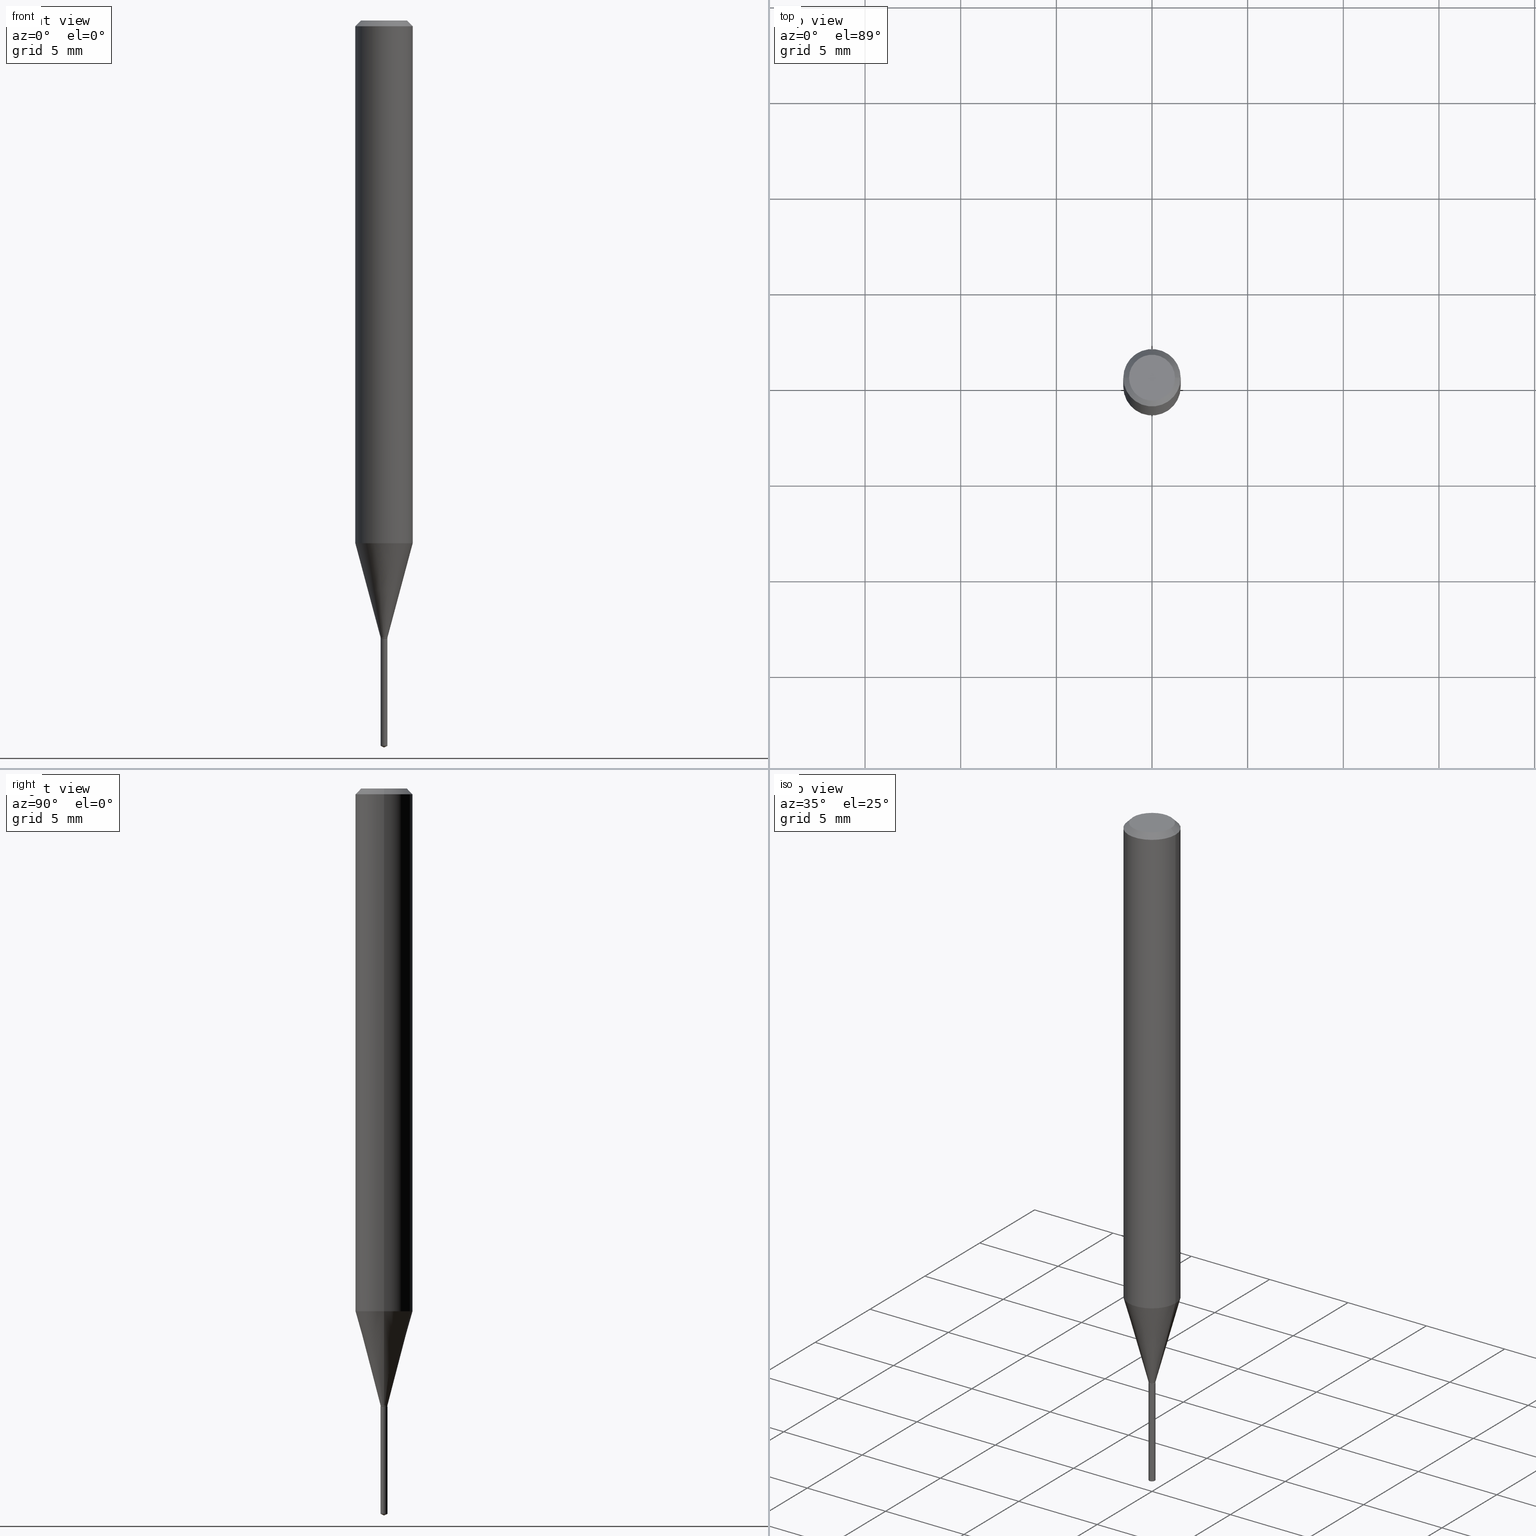
[diagram: canonical four-view strip — front | top / right | iso, engineering-drawing reading convention]
A machine part, canonical four-view strip (front | top / right | iso — engineering-drawing reading convention). The complete STEP part file that produces these views, byte-faithful:
ISO-10303-21;
HEADER;
FILE_DESCRIPTION (( 'STEP AP203' ),
    '1' );
FILE_NAME ('08077.STEP',
    '2024-04-24T10:45:27',
    ( '' ),
    ( '' ),
    'SwSTEP 2.0',
    'SolidWorks 2023',
    '' );
FILE_SCHEMA (( 'CONFIG_CONTROL_DESIGN' ));
ENDSEC;

DATA;
#1 = DIRECTION ( 'NONE',  ( -2.445468806185136597E-29, 3.491481338843145583E-15, 1.000000000000000000 ) ) ;
#2 = EDGE_LOOP ( 'NONE', ( #309, #113, #274, #414 ) ) ;
#3 = CIRCLE ( 'NONE', #214, 0.007100000000000000408 ) ;
#4 = AXIS2_PLACEMENT_3D ( 'NONE', #121, #100, #264 ) ;
#5 = CC_DESIGN_APPROVAL ( #158, ( #436 ) ) ;
#6 = ORIENTED_EDGE ( 'NONE', *, *, #26, .T. ) ;
#7 = FACE_OUTER_BOUND ( 'NONE', #281, .T. ) ;
#8 = LINE ( 'NONE', #250, #296 ) ;
#9 = ORIENTED_EDGE ( 'NONE', *, *, #339, .F. ) ;
#10 = PERSON_AND_ORGANIZATION ( #488, #123 ) ;
#11 = APPROVAL_PERSON_ORGANIZATION ( #389, #158, #366 ) ;
#12 = DIRECTION ( 'NONE',  ( -2.445451076271118923E-29, 3.491506729089142946E-15, 1.000000000000000000 ) ) ;
#13 = DIRECTION ( 'NONE',  ( -2.445468806185136597E-29, 3.491481338843145583E-15, 1.000000000000000000 ) ) ;
#14 = DIRECTION ( 'NONE',  ( 1.000000000000000000, -6.982962677686266711E-15, 4.876185090822587894E-29 ) ) ;
#15 = PERSON_AND_ORGANIZATION ( #488, #123 ) ;
#16 = PERSON_AND_ORGANIZATION_ROLE ( 'creator' ) ;
#17 = ORIENTED_EDGE ( 'NONE', *, *, #56, .T. ) ;
#18 = DIRECTION ( 'NONE',  ( -6.982962677686265922E-15, -1.000000000000000000, 0.000000000000000000 ) ) ;
#19 = CARTESIAN_POINT ( 'NONE',  ( -0.05905000000000013710, -3.336280682603885216E-15, -1.075719960546796861 ) ) ;
#20 = PRODUCT_DEFINITION ( 'UNKNOWN', '', #436, #122 ) ;
#21 = UNCERTAINTY_MEASURE_WITH_UNIT (LENGTH_MEASURE( 1.000000000000000082E-05 ), #277, 'distance_accuracy_value', 'NONE');
#22 = VECTOR ( 'NONE', #323, 39.37007874015748143 ) ;
#23 = LINE ( 'NONE', #182, #351 ) ;
#24 = LINE ( 'NONE', #112, #485 ) ;
#25 = ORIENTED_EDGE ( 'NONE', *, *, #263, .F. ) ;
#26 = EDGE_CURVE ( 'NONE', #33, #380, #404, .T. ) ;
#27 = CARTESIAN_POINT ( 'NONE',  ( 0.007100000000000000408, -4.482363742806830057E-15, -1.269600000000000062 ) ) ;
#28 = CYLINDRICAL_SURFACE ( 'NONE', #135, 0.007100000000000000408 ) ;
#29 = CONICAL_SURFACE ( 'NONE', #415, 0.05904999999999999832, 0.7853981633974452814 ) ;
#30 = EDGE_CURVE ( 'NONE', #83, #439, #23, .T. ) ;
#31 = CARTESIAN_POINT ( 'NONE',  ( 3.658684844895993065E-29, -5.223578639838595725E-15, -1.496099999999999985 ) ) ;
#32 = VERTEX_POINT ( 'NONE', #186 ) ;
#33 = VERTEX_POINT ( 'NONE', #301 ) ;
#34 = AXIS2_PLACEMENT_3D ( 'NONE', #137, #86, #298 ) ;
#35 = ORIENTED_EDGE ( 'NONE', *, *, #374, .F. ) ;
#36 = CIRCLE ( 'NONE', #85, 0.007100000000000000408 ) ;
#37 = VERTEX_POINT ( 'NONE', #192 ) ;
#38 = CARTESIAN_POINT ( 'NONE',  ( -0.007100000000000000408, -4.385129358627364316E-15, -1.269600000000000062 ) ) ;
#39 = APPROVAL_STATUS ( 'not_yet_approved' ) ;
#40 = ORIENTED_EDGE ( 'NONE', *, *, #428, .F. ) ;
#41 = CALENDAR_DATE ( 2024, 24, 4 ) ;
#42 = FACE_OUTER_BOUND ( 'NONE', #384, .T. ) ;
#43 = CARTESIAN_POINT ( 'NONE',  ( -9.261893952565592859E-28, 1.322372839174148049E-13, 37.87397874015748300 ) ) ;
#44 = CARTESIAN_POINT ( 'NONE',  ( 0.05905000000000006771, -4.123439461173745257E-16, 2.879382386107503723E-30 ) ) ;
#45 = ORIENTED_EDGE ( 'NONE', *, *, #381, .T. ) ;
#46 = DIRECTION ( 'NONE',  ( -2.445468806185136597E-29, 3.491481338843145583E-15, 1.000000000000000000 ) ) ;
#47 = AXIS2_PLACEMENT_3D ( 'NONE', #468, #180, #337 ) ;
#48 = AXIS2_PLACEMENT_3D ( 'NONE', #66, #1, #236 ) ;
#49 = PERSON_AND_ORGANIZATION ( #488, #123 ) ;
#50 = CARTESIAN_POINT ( 'NONE',  ( 8.265746106709734507E-48, -1.180129479067563789E-33, -3.380025165646692144E-19 ) ) ;
#51 = DATE_AND_TIME ( #41, #302 ) ;
#52 = MANIFOLD_SOLID_BREP ( 'Body-Move/Copy2[1]', #170 ) ;
#53 = CC_DESIGN_PERSON_AND_ORGANIZATION_ASSIGNMENT ( #10, #89, ( #422 ) ) ;
#54 = FACE_OUTER_BOUND ( 'NONE', #202, .T. ) ;
#55 = ORIENTED_EDGE ( 'NONE', *, *, #435, .T. ) ;
#56 = EDGE_CURVE ( 'NONE', #33, #459, #101, .T. ) ;
#57 = FACE_OUTER_BOUND ( 'NONE', #395, .T. ) ;
#58 = CIRCLE ( 'NONE', #268, 0.04724000000000000421 ) ;
#59 = CC_DESIGN_PERSON_AND_ORGANIZATION_ASSIGNMENT ( #61, #474, ( #417 ) ) ;
#60 = LINE ( 'NONE', #269, #114 ) ;
#61 = PERSON_AND_ORGANIZATION ( #488, #123 ) ;
#62 = DIRECTION ( 'NONE',  ( -2.445451076271118923E-29, 3.491506729089142946E-15, 1.000000000000000000 ) ) ;
#63 = LINE ( 'NONE', #181, #239 ) ;
#64 = EDGE_LOOP ( 'NONE', ( #120, #308, #105, #292 ) ) ;
#65 = DIRECTION ( 'NONE',  ( -2.445468806185136597E-29, 3.491481338843145583E-15, 1.000000000000000000 ) ) ;
#66 = CARTESIAN_POINT ( 'NONE',  ( 3.109902680825638129E-29, -4.440116818606828093E-15, -1.271700000000000053 ) ) ;
#67 = CARTESIAN_POINT ( 'NONE',  ( 3.104767196332649259E-29, -4.432784707795257778E-15, -1.269600000000000062 ) ) ;
#68 = DIRECTION ( 'NONE',  ( -2.445468806185136877E-29, 3.491481338843145188E-15, 1.000000000000000000 ) ) ;
#69 = DIRECTION ( 'NONE',  ( 1.000000000000000000, -6.982962677686291954E-15, 0.000000000000000000 ) ) ;
#70 = ORIENTED_EDGE ( 'NONE', *, *, #273, .F. ) ;
#71 = CC_DESIGN_PERSON_AND_ORGANIZATION_ASSIGNMENT ( #15, #16, ( #436 ) ) ;
#72 = CONICAL_SURFACE ( 'NONE', #364, 84.42940631927135087, 1.134464013796302462 ) ;
#73 = FACE_OUTER_BOUND ( 'NONE', #375, .T. ) ;
#74 = DIRECTION ( 'NONE',  ( -2.445451076271118923E-29, 3.491506729089142946E-15, 1.000000000000000000 ) ) ;
#75 = ORIENTED_EDGE ( 'NONE', *, *, #451, .T. ) ;
#76 = ORIENTED_EDGE ( 'NONE', *, *, #118, .F. ) ;
#77 = EDGE_CURVE ( 'NONE', #348, #37, #333, .T. ) ;
#78 = AXIS2_PLACEMENT_3D ( 'NONE', #340, #265, #335 ) ;
#79 = APPLICATION_PROTOCOL_DEFINITION ( 'international standard', 'config_control_design', 1994, #197 ) ;
#80 = CIRCLE ( 'NONE', #376, 0.006599999999999999964 ) ;
#81 = PRODUCT_DEFINITION_SHAPE ( 'NONE', 'NONE',  #20 ) ;
#82 = EDGE_CURVE ( 'NONE', #460, #284, #266, .T. ) ;
#83 = VERTEX_POINT ( 'NONE', #229 ) ;
#84 = VECTOR ( 'NONE', #480, 39.37007874015748143 ) ;
#85 = AXIS2_PLACEMENT_3D ( 'NONE', #184, #211, #324 ) ;
#86 = DIRECTION ( 'NONE',  ( 2.445451076271118923E-29, -3.491506729089142552E-15, -1.000000000000000000 ) ) ;
#87 = ORIENTED_EDGE ( 'NONE', *, *, #30, .T. ) ;
#88 = DIRECTION ( 'NONE',  ( -2.445468806185136597E-29, 3.491481338843145583E-15, 1.000000000000000000 ) ) ;
#89 = PERSON_AND_ORGANIZATION_ROLE ( 'design_owner' ) ;
#90 = ORIENTED_EDGE ( 'NONE', *, *, #322, .F. ) ;
#91 = MECHANICAL_CONTEXT ( 'NONE', #197, 'mechanical' ) ;
#92 = CARTESIAN_POINT ( 'NONE',  ( 2.888098660104663766E-31, -4.123439461173779647E-17, -0.01181000000000007044 ) ) ;
#93 = CALENDAR_DATE ( 2024, 24, 4 ) ;
#94 = CIRCLE ( 'NONE', #189, 0.05904999999999999832 ) ;
#95 = LOCAL_TIME ( 6, 45, 27.00000000000000000, #471 ) ;
#96 = CARTESIAN_POINT ( 'NONE',  ( 0.05904999999999999832, -4.463468013801466955E-16, -0.01181000000000007044 ) ) ;
#97 = EDGE_CURVE ( 'NONE', #103, #33, #299, .T. ) ;
#98 = DIRECTION ( 'NONE',  ( 0.7071067811865453523, -7.319954787623248157E-15, -0.7071067811865496822 ) ) ;
#99 = PERSON_AND_ORGANIZATION_ROLE ( 'design_supplier' ) ;
#100 = DIRECTION ( 'NONE',  ( -2.438088387897960049E-29, 3.491481338843145188E-15, 1.000000000000000000 ) ) ;
#101 = LINE ( 'NONE', #27, #358 ) ;
#102 = LENGTH_MEASURE_WITH_UNIT ( LENGTH_MEASURE( 0.02539999999999999897 ), #346 );
#103 = VERTEX_POINT ( 'NONE', #345 ) ;
#104 = FACE_OUTER_BOUND ( 'NONE', #476, .T. ) ;
#105 = ORIENTED_EDGE ( 'NONE', *, *, #200, .T. ) ;
#106 =( NAMED_UNIT ( * ) PLANE_ANGLE_UNIT ( ) SI_UNIT ( $, .RADIAN. ) );
#107 = CARTESIAN_POINT ( 'NONE',  ( 3.104767196332649259E-29, -4.432784707795257778E-15, -1.269600000000000062 ) ) ;
#108 = ORIENTED_EDGE ( 'NONE', *, *, #200, .F. ) ;
#109 = LINE ( 'NONE', #407, #425 ) ;
#110 = APPLICATION_CONTEXT ( 'configuration controlled 3d designs of mechanical parts and assemblies' ) ;
#111 = CARTESIAN_POINT ( 'NONE',  ( 0.000000000000000000, 0.000000000000000000, 0.000000000000000000 ) ) ;
#112 = CARTESIAN_POINT ( 'NONE',  ( -0.05905000000000006771, 4.195754854663396409E-16, -2.904631170795525045E-30 ) ) ;
#113 = ORIENTED_EDGE ( 'NONE', *, *, #162, .T. ) ;
#114 = VECTOR ( 'NONE', #372, 39.37007874015747433 ) ;
#115 = ORIENTED_EDGE ( 'NONE', *, *, #145, .F. ) ;
#116 = DIRECTION ( 'NONE',  ( -1.000000000000000000, 6.982962677686266711E-15, 0.000000000000000000 ) ) ;
#117 = CARTESIAN_POINT ( 'NONE',  ( 0.05905000000000013710, -4.168200114187600418E-15, -1.075719960546796861 ) ) ;
#118 = EDGE_CURVE ( 'NONE', #153, #284, #8, .T. ) ;
#119 = EDGE_LOOP ( 'NONE', ( #151, #75, #205 ) ) ;
#120 = ORIENTED_EDGE ( 'NONE', *, *, #403, .F. ) ;
#121 = CARTESIAN_POINT ( 'NONE',  ( 3.109902680825638129E-29, -4.440116818606828093E-15, -1.271700000000000053 ) ) ;
#122 = DESIGN_CONTEXT ( 'detailed design', #110, 'design' ) ;
#123 = ORGANIZATION ( 'UNSPECIFIED', 'UNSPECIFIED', '' ) ;
#124 = DIRECTION ( 'NONE',  ( 1.000000000000000000, -6.982962677686215435E-15, 0.000000000000000000 ) ) ;
#125 = VERTEX_POINT ( 'NONE', #390 ) ;
#126 = ADVANCED_FACE ( 'NONE', ( #42 ), #212, .T. ) ;
#127 = ORIENTED_EDGE ( 'NONE', *, *, #361, .T. ) ;
#128 = ORIENTED_EDGE ( 'NONE', *, *, #221, .T. ) ;
#129 = DIRECTION ( 'NONE',  ( -2.445468806185136597E-29, 3.491481338843145583E-15, 1.000000000000000000 ) ) ;
#130 = FACE_OUTER_BOUND ( 'NONE', #226, .T. ) ;
#131 = CARTESIAN_POINT ( 'NONE',  ( 0.000000000000000000, 0.000000000000000000, 0.000000000000000000 ) ) ;
#132 = CARTESIAN_POINT ( 'NONE',  ( 0.000000000000000000, 0.000000000000000000, 0.000000000000000000 ) ) ;
#133 = AXIS2_PLACEMENT_3D ( 'NONE', #466, #62, #437 ) ;
#134 = VECTOR ( 'NONE', #477, 39.37007874015748143 ) ;
#135 = AXIS2_PLACEMENT_3D ( 'NONE', #195, #148, #440 ) ;
#136 = DATE_AND_TIME ( #142, #95 ) ;
#137 = CARTESIAN_POINT ( 'NONE',  ( 3.109902680825638129E-29, -4.440116818606828093E-15, -1.271700000000000053 ) ) ;
#138 = DIRECTION ( 'NONE',  ( -0.7071067811866191821, 7.493145998870612907E-15, 0.7071067811864758523 ) ) ;
#139 = PERSON_AND_ORGANIZATION ( #488, #123 ) ;
#140 = EDGE_LOOP ( 'NONE', ( #413, #354, #199, #443 ) ) ;
#141 = APPROVAL_ROLE ( '' ) ;
#142 = CALENDAR_DATE ( 2024, 24, 4 ) ;
#143 = CONICAL_SURFACE ( 'NONE', #47, 0.05904999999999999832, 0.7853981633974452814 ) ;
#144 = CIRCLE ( 'NONE', #225, 0.04724000000000000421 ) ;
#145 = EDGE_CURVE ( 'NONE', #223, #460, #373, .T. ) ;
#146 = VERTEX_POINT ( 'NONE', #19 ) ;
#147 = DIRECTION ( 'NONE',  ( -2.445468806185136597E-29, 3.491481338843145583E-15, 1.000000000000000000 ) ) ;
#148 = DIRECTION ( 'NONE',  ( -2.445451076271118923E-29, 3.491506729089142946E-15, 1.000000000000000000 ) ) ;
#149 = DIMENSIONAL_EXPONENTS ( 1.000000000000000000, 0.000000000000000000, 0.000000000000000000, 0.000000000000000000, 0.000000000000000000, 0.000000000000000000, 0.000000000000000000 ) ;
#150 = DIRECTION ( 'NONE',  ( -2.445468806185136597E-29, 3.491481338843145583E-15, 1.000000000000000000 ) ) ;
#151 = ORIENTED_EDGE ( 'NONE', *, *, #344, .F. ) ;
#152 = EDGE_LOOP ( 'NONE', ( #127, #479 ) ) ;
#153 = VERTEX_POINT ( 'NONE', #293 ) ;
#154 = ADVANCED_FACE ( 'NONE', ( #185 ), #156, .T. ) ;
#155 = CARTESIAN_POINT ( 'NONE',  ( 2.630639607707897401E-29, -3.755856168070225498E-15, -1.075719960546796861 ) ) ;
#156 = CONICAL_SURFACE ( 'NONE', #178, 84.42940631927135087, 1.134464013796302462 ) ;
#157 = AXIS2_PLACEMENT_3D ( 'NONE', #427, #256, #419 ) ;
#158 = APPROVAL ( #39, 'UNSPECIFIED' ) ;
#159 = FACE_OUTER_BOUND ( 'NONE', #222, .T. ) ;
#160 = VERTEX_POINT ( 'NONE', #461 ) ;
#161 = DIRECTION ( 'NONE',  ( 2.438088387897960049E-29, -3.491481338843145188E-15, -1.000000000000000000 ) ) ;
#162 = EDGE_CURVE ( 'NONE', #146, #459, #444, .T. ) ;
#163 = AXIS2_PLACEMENT_3D ( 'NONE', #172, #392, #424 ) ;
#164 = AXIS2_PLACEMENT_3D ( 'NONE', #382, #161, #203 ) ;
#165 = LINE ( 'NONE', #96, #481 ) ;
#166 = ORIENTED_EDGE ( 'NONE', *, *, #322, .T. ) ;
#167 = ORIENTED_EDGE ( 'NONE', *, *, #344, .T. ) ;
#168 = ORIENTED_EDGE ( 'NONE', *, *, #313, .T. ) ;
#169 = ADVANCED_FACE ( 'NONE', ( #217 ), #330, .T. ) ;
#170 = CLOSED_SHELL ( 'NONE', ( #126, #464, #154, #278, #193 ) ) ;
#171 = LOCAL_TIME ( 6, 45, 27.00000000000000000, #487 ) ;
#172 = CARTESIAN_POINT ( 'NONE',  ( 2.630639607707897401E-29, -3.755856168070225498E-15, -1.075719960546796861 ) ) ;
#173 = CARTESIAN_POINT ( 'NONE',  ( 3.104767196332649259E-29, -4.432784707795257778E-15, -1.269600000000000062 ) ) ;
#174 = CARTESIAN_POINT ( 'NONE',  ( -0.05904999999999999832, -1.478969795874641529E-15, -0.01181000000000007044 ) ) ;
#175 = ORIENTED_EDGE ( 'NONE', *, *, #339, .T. ) ;
#176 = CYLINDRICAL_SURFACE ( 'NONE', #393, 0.007100000000000000408 ) ;
#177 = ADVANCED_FACE ( 'NONE', ( #130 ), #143, .T. ) ;
#178 = AXIS2_PLACEMENT_3D ( 'NONE', #43, #213, #369 ) ;
#179 = AXIS2_PLACEMENT_3D ( 'NONE', #247, #255, #259 ) ;
#180 = DIRECTION ( 'NONE',  ( 2.445468806185136597E-29, -3.491481338843145583E-15, -1.000000000000000000 ) ) ;
#181 = CARTESIAN_POINT ( 'NONE',  ( -0.05904999999999999832, 3.711095515056362547E-16, -0.01181000000000007044 ) ) ;
#182 = CARTESIAN_POINT ( 'NONE',  ( -0.006599999999999999964, -4.393220998046661912E-15, -1.271700000000000053 ) ) ;
#183 = APPROVAL ( #472, 'UNSPECIFIED' ) ;
#184 = CARTESIAN_POINT ( 'NONE',  ( 3.109902680825638129E-29, -4.440116818606828093E-15, -1.271700000000000053 ) ) ;
#185 = FACE_OUTER_BOUND ( 'NONE', #357, .T. ) ;
#186 = CARTESIAN_POINT ( 'NONE',  ( 0.04724000000000000421, -3.852183633974369345E-16, -3.380025165621689721E-19 ) ) ;
#187 = ORIENTED_EDGE ( 'NONE', *, *, #162, .F. ) ;
#188 = DIRECTION ( 'NONE',  ( 1.000000000000000000, -6.982962677686291954E-15, 0.000000000000000000 ) ) ;
#189 = AXIS2_PLACEMENT_3D ( 'NONE', #429, #88, #272 ) ;
#190 = AXIS2_PLACEMENT_3D ( 'NONE', #438, #434, #188 ) ;
#191 = CALENDAR_DATE ( 2024, 24, 4 ) ;
#192 = CARTESIAN_POINT ( 'NONE',  ( 0.05904999999999999832, -4.535783407291118600E-16, -0.01181000000000007044 ) ) ;
#193 = ADVANCED_FACE ( 'NONE', ( #294 ), #262, .F. ) ;
#194 = CLOSED_SHELL ( 'NONE', ( #243, #484, #240, #489, #169, #396, #289, #387, #177, #283, #307, #254 ) ) ;
#195 = CARTESIAN_POINT ( 'NONE',  ( 3.109902680825638129E-29, -4.440116818606828093E-15, -1.271700000000000053 ) ) ;
#196 = ORIENTED_EDGE ( 'NONE', *, *, #403, .T. ) ;
#197 = APPLICATION_CONTEXT ( 'configuration controlled 3d designs of mechanical parts and assemblies' ) ;
#198 = CARTESIAN_POINT ( 'NONE',  ( 5.044853423900365638E-17, 0.007099999999995559516, -1.271700000000000053 ) ) ;
#199 = ORIENTED_EDGE ( 'NONE', *, *, #26, .F. ) ;
#200 = EDGE_CURVE ( 'NONE', #37, #348, #94, .T. ) ;
#201 = ORIENTED_EDGE ( 'NONE', *, *, #145, .T. ) ;
#202 = EDGE_LOOP ( 'NONE', ( #40, #9 ) ) ;
#203 = DIRECTION ( 'NONE',  ( -1.000000000000000000, 6.982962677686265922E-15, -4.876176775795935793E-29 ) ) ;
#204 = AXIS2_PLACEMENT_3D ( 'NONE', #388, #12, #18 ) ;
#205 = ORIENTED_EDGE ( 'NONE', *, *, #328, .F. ) ;
#206 = DIRECTION ( 'NONE',  ( 1.000000000000000000, -6.982962677686266711E-15, 4.876176775795936353E-29 ) ) ;
#207 = APPROVAL_DATE_TIME ( #235, #183 ) ;
#208 = LINE ( 'NONE', #44, #22 ) ;
#209 = CARTESIAN_POINT ( 'NONE',  ( 3.650565541132865104E-29, -5.212051302697885877E-15, -1.492789215627099431 ) ) ;
#210 = DIRECTION ( 'NONE',  ( -2.445468806185136597E-29, 3.491481338843145583E-15, 1.000000000000000000 ) ) ;
#211 = DIRECTION ( 'NONE',  ( -2.445451076271118923E-29, 3.491506729089142946E-15, 1.000000000000000000 ) ) ;
#212 = CYLINDRICAL_SURFACE ( 'NONE', #133, 0.007100000000000000408 ) ;
#213 = DIRECTION ( 'NONE',  ( -2.445451076271118923E-29, 3.491506729089142946E-15, 1.000000000000000000 ) ) ;
#214 = AXIS2_PLACEMENT_3D ( 'NONE', #237, #408, #69 ) ;
#215 = DIRECTION ( 'NONE',  ( -6.982962677686265922E-15, -1.000000000000000000, 0.000000000000000000 ) ) ;
#216 = CC_DESIGN_APPROVAL ( #183, ( #20 ) ) ;
#217 = FACE_OUTER_BOUND ( 'NONE', #140, .T. ) ;
#218 = CARTESIAN_POINT ( 'NONE',  ( 3.108679946422545888E-29, -4.438371077937407378E-15, -1.271200000000000108 ) ) ;
#219 = APPROVAL_DATE_TIME ( #51, #158 ) ;
#220 = PERSON_AND_ORGANIZATION_ROLE ( 'creator' ) ;
#221 = EDGE_CURVE ( 'NONE', #459, #146, #378, .T. ) ;
#222 = EDGE_LOOP ( 'NONE', ( #128, #55, #108, #25 ) ) ;
#223 = VERTEX_POINT ( 'NONE', #312 ) ;
#224 = DATE_TIME_ROLE ( 'classification_date' ) ;
#225 = AXIS2_PLACEMENT_3D ( 'NONE', #478, #400, #303 ) ;
#226 = EDGE_LOOP ( 'NONE', ( #305, #35, #168, #320 ) ) ;
#227 = CC_DESIGN_SECURITY_CLASSIFICATION ( #417, ( #436 ) ) ;
#228 = EDGE_CURVE ( 'NONE', #439, #380, #109, .T. ) ;
#229 = CARTESIAN_POINT ( 'NONE',  ( -0.006599999999999999964, -4.390571770872550711E-15, -1.271700000000000053 ) ) ;
#230 = COORDINATED_UNIVERSAL_TIME_OFFSET ( 5, 0, .BEHIND. ) ;
#231 = ORIENTED_EDGE ( 'NONE', *, *, #221, .F. ) ;
#232 = ORIENTED_EDGE ( 'NONE', *, *, #97, .T. ) ;
#233 = VECTOR ( 'NONE', #465, 39.37007874015748143 ) ;
#234 = EDGE_CURVE ( 'NONE', #380, #33, #3, .T. ) ;
#235 = DATE_AND_TIME ( #191, #457 ) ;
#236 = DIRECTION ( 'NONE',  ( 1.000000000000000000, -6.982962677686215435E-15, 0.000000000000000000 ) ) ;
#237 = CARTESIAN_POINT ( 'NONE',  ( 3.104767196332649259E-29, -4.432784707795257778E-15, -1.269600000000000062 ) ) ;
#238 = CARTESIAN_POINT ( 'NONE',  ( -0.007100000000000000408, -4.385129358627364316E-15, -1.271200000000000108 ) ) ;
#239 = VECTOR ( 'NONE', #401, 39.37007874015748143 ) ;
#240 = ADVANCED_FACE ( 'NONE', ( #159 ), #446, .T. ) ;
#241 = DIRECTION ( 'NONE',  ( -2.445468806185136597E-29, 3.491481338843145583E-15, 1.000000000000000000 ) ) ;
#242 = DIRECTION ( 'NONE',  ( -2.445451076271118643E-29, 3.491506729089142552E-15, 1.000000000000000000 ) ) ;
#243 = ADVANCED_FACE ( 'NONE', ( #7 ), #467, .T. ) ;
#244 = AXIS2_PLACEMENT_3D ( 'NONE', #67, #241, #441 ) ;
#245 = DIRECTION ( 'NONE',  ( -2.445468806185136597E-29, 3.491481338843145583E-15, 1.000000000000000000 ) ) ;
#246 = CC_DESIGN_DATE_AND_TIME_ASSIGNMENT ( #452, #288, ( #20 ) ) ;
#247 = CARTESIAN_POINT ( 'NONE',  ( 3.109902680825638129E-29, -4.440116818606828093E-15, -1.271700000000000053 ) ) ;
#248 = CALENDAR_DATE ( 2024, 24, 4 ) ;
#249 = CARTESIAN_POINT ( 'NONE',  ( 3.658639355209220542E-29, -5.223643217390265926E-15, -1.496099999999999985 ) ) ;
#250 = CARTESIAN_POINT ( 'NONE',  ( -4.957903501154139640E-17, -0.007100000000004440433, -1.271700000000000053 ) ) ;
#251 = DIRECTION ( 'NONE',  ( 0.7071067811866191821, -2.468850131083007662E-15, 0.7071067811864758523 ) ) ;
#252 = CARTESIAN_POINT ( 'NONE',  ( 3.109902680825638129E-29, -4.440116818606828093E-15, -1.271700000000000053 ) ) ;
#253 = CONICAL_SURFACE ( 'NONE', #179, 0.006599999999999999964, 0.7853981633975496424 ) ;
#254 = ADVANCED_FACE ( 'NONE', ( #418 ), #253, .T. ) ;
#255 = DIRECTION ( 'NONE',  ( -2.445468806185136597E-29, 3.491481338843145583E-15, 1.000000000000000000 ) ) ;
#256 = DIRECTION ( 'NONE',  ( -2.445468806185136597E-29, 3.491481338843145583E-15, 1.000000000000000000 ) ) ;
#257 = ORIENTED_EDGE ( 'NONE', *, *, #416, .F. ) ;
#258 = APPLICATION_PROTOCOL_DEFINITION ( 'international standard', 'config_control_design', 1994, #110 ) ;
#259 = DIRECTION ( 'NONE',  ( 1.000000000000000000, -6.982962677686215435E-15, 0.000000000000000000 ) ) ;
#260 = FACE_OUTER_BOUND ( 'NONE', #64, .T. ) ;
#261 = CARTESIAN_POINT ( 'NONE',  ( 3.658639355209220542E-29, -5.223643217390265926E-15, -1.496099999999999985 ) ) ;
#262 = PLANE ( 'NONE',  #34 ) ;
#263 = EDGE_CURVE ( 'NONE', #459, #37, #208, .T. ) ;
#264 = DIRECTION ( 'NONE',  ( 1.000000000000000000, -6.982962677686265922E-15, 4.876176775795935793E-29 ) ) ;
#265 = DIRECTION ( 'NONE',  ( -2.445468806185136597E-29, 3.491481338843145583E-15, 1.000000000000000000 ) ) ;
#266 = CIRCLE ( 'NONE', #370, 0.007100000000000000408 ) ;
#267 = DATE_AND_TIME ( #93, #469 ) ;
#268 = AXIS2_PLACEMENT_3D ( 'NONE', #50, #245, #14 ) ;
#269 = CARTESIAN_POINT ( 'NONE',  ( -0.007100000000000000408, -4.382336173556289910E-15, -1.269600000000000062 ) ) ;
#270 = CARTESIAN_POINT ( 'NONE',  ( 3.109902680825638129E-29, -4.440116818606828093E-15, -1.271700000000000053 ) ) ;
#271 = APPROVAL_ROLE ( '' ) ;
#272 = DIRECTION ( 'NONE',  ( 1.000000000000000000, -6.982962677686266711E-15, 0.000000000000000000 ) ) ;
#273 = EDGE_CURVE ( 'NONE', #223, #153, #326, .T. ) ;
#274 = ORIENTED_EDGE ( 'NONE', *, *, #263, .T. ) ;
#275 = AXIS2_PLACEMENT_3D ( 'NONE', #107, #210, #391 ) ;
#276 = ORIENTED_EDGE ( 'NONE', *, *, #428, .T. ) ;
#277 =( CONVERSION_BASED_UNIT ( 'INCH', #102 ) LENGTH_UNIT ( ) NAMED_UNIT ( #149 ) );
#278 = ADVANCED_FACE ( 'NONE', ( #104 ), #28, .T. ) ;
#279 = EDGE_LOOP ( 'NONE', ( #442, #45, #232, #421 ) ) ;
#280 = ORIENTED_EDGE ( 'NONE', *, *, #118, .T. ) ;
#281 = EDGE_LOOP ( 'NONE', ( #276, #87, #257, #318 ) ) ;
#282 = DIRECTION ( 'NONE',  ( 1.000000000000000000, 0.000000000000000000, 0.000000000000000000 ) ) ;
#283 = ADVANCED_FACE ( 'NONE', ( #57 ), #412, .F. ) ;
#284 = VERTEX_POINT ( 'NONE', #314 ) ;
#285 = CC_DESIGN_APPROVAL ( #462, ( #417 ) ) ;
#286 = CYLINDRICAL_SURFACE ( 'NONE', #157, 0.05905000000000006771 ) ;
#287 = ORIENTED_EDGE ( 'NONE', *, *, #82, .F. ) ;
#288 = DATE_TIME_ROLE ( 'creation_date' ) ;
#289 = ADVANCED_FACE ( 'NONE', ( #449 ), #342, .T. ) ;
#290 = DIRECTION ( 'NONE',  ( 1.000000000000000000, -6.982962677686291954E-15, 0.000000000000000000 ) ) ;
#291 = COORDINATED_UNIVERSAL_TIME_OFFSET ( 5, 0, .BEHIND. ) ;
#292 = ORIENTED_EDGE ( 'NONE', *, *, #313, .F. ) ;
#293 = CARTESIAN_POINT ( 'NONE',  ( -4.957903501153596682E-17, -0.007100000000005210650, -1.492789215627099431 ) ) ;
#294 = FACE_OUTER_BOUND ( 'NONE', #152, .T. ) ;
#295 = CARTESIAN_POINT ( 'NONE',  ( 0.006599999999999999964, -4.486204372279557365E-15, -1.271700000000000053 ) ) ;
#296 = VECTOR ( 'NONE', #242, 39.37007874015748143 ) ;
#297 = AXIS2_PLACEMENT_3D ( 'NONE', #218, #129, #290 ) ;
#298 = DIRECTION ( 'NONE',  ( 6.982962677686265922E-15, 1.000000000000000000, -3.491506729089142552E-15 ) ) ;
#299 = LINE ( 'NONE', #402, #84 ) ;
#300 = EDGE_CURVE ( 'NONE', #160, #103, #423, .T. ) ;
#301 = CARTESIAN_POINT ( 'NONE',  ( 0.007100000000000000408, -4.482363742806830057E-15, -1.269600000000000062 ) ) ;
#302 = LOCAL_TIME ( 6, 45, 27.00000000000000000, #291 ) ;
#303 = DIRECTION ( 'NONE',  ( 1.000000000000000000, -6.982962677686266711E-15, 4.876185090822587894E-29 ) ) ;
#304 = DIRECTION ( 'NONE',  ( -6.982962677686265922E-15, -1.000000000000000000, 0.000000000000000000 ) ) ;
#305 = ORIENTED_EDGE ( 'NONE', *, *, #475, .F. ) ;
#306 = DIRECTION ( 'NONE',  ( 1.000000000000000000, -6.982962677686215435E-15, 0.000000000000000000 ) ) ;
#307 = ADVANCED_FACE ( 'NONE', ( #54 ), #331, .F. ) ;
#308 = ORIENTED_EDGE ( 'NONE', *, *, #475, .T. ) ;
#309 = ORIENTED_EDGE ( 'NONE', *, *, #435, .F. ) ;
#310 = DIRECTION ( 'NONE',  ( 1.000000000000000000, -6.982962677686265133E-15, 0.000000000000000000 ) ) ;
#311 = CIRCLE ( 'NONE', #297, 0.007100000000000000408 ) ;
#312 = CARTESIAN_POINT ( 'NONE',  ( 5.044853423900360708E-17, 0.007099999999994785829, -1.492789215627099431 ) ) ;
#313 = EDGE_CURVE ( 'NONE', #125, #348, #63, .T. ) ;
#314 = CARTESIAN_POINT ( 'NONE',  ( -4.957903501154139640E-17, -0.007100000000004440433, -1.271700000000000053 ) ) ;
#315 = EDGE_LOOP ( 'NONE', ( #90, #458, #17, #187 ) ) ;
#316 = CARTESIAN_POINT ( 'NONE',  ( -9.261893952565592859E-28, 1.322372839174148049E-13, 37.87397874015748300 ) ) ;
#317 = VECTOR ( 'NONE', #251, 39.37007874015748143 ) ;
#318 = ORIENTED_EDGE ( 'NONE', *, *, #300, .F. ) ;
#319 = ORIENTED_EDGE ( 'NONE', *, *, #273, .T. ) ;
#320 = ORIENTED_EDGE ( 'NONE', *, *, #77, .T. ) ;
#321 =( NAMED_UNIT ( * ) SI_UNIT ( $, .STERADIAN. ) SOLID_ANGLE_UNIT ( ) );
#322 = EDGE_CURVE ( 'NONE', #380, #146, #60, .T. ) ;
#323 = DIRECTION ( 'NONE',  ( -2.445468806185136877E-29, 3.491481338843145188E-15, 1.000000000000000000 ) ) ;
#324 = DIRECTION ( 'NONE',  ( -6.982962677686265922E-15, -1.000000000000000000, 0.000000000000000000 ) ) ;
#325 = AXIS2_PLACEMENT_3D ( 'NONE', #363, #332, #463 ) ;
#326 = CIRCLE ( 'NONE', #204, 0.007100000000000000408 ) ;
#327 = ORIENTED_EDGE ( 'NONE', *, *, #30, .F. ) ;
#328 = EDGE_CURVE ( 'NONE', #153, #223, #383, .T. ) ;
#329 = ORIENTED_EDGE ( 'NONE', *, *, #361, .F. ) ;
#330 = CYLINDRICAL_SURFACE ( 'NONE', #325, 0.007100000000000000408 ) ;
#331 = PLANE ( 'NONE',  #4 ) ;
#332 = DIRECTION ( 'NONE',  ( -2.445468806185136597E-29, 3.491481338843145583E-15, 1.000000000000000000 ) ) ;
#333 = CIRCLE ( 'NONE', #78, 0.05904999999999999832 ) ;
#334 = APPROVAL_PERSON_ORGANIZATION ( #397, #183, #141 ) ;
#335 = DIRECTION ( 'NONE',  ( 1.000000000000000000, -6.982962677686266711E-15, 0.000000000000000000 ) ) ;
#336 = SECURITY_CLASSIFICATION_LEVEL ( 'unclassified' ) ;
#337 = DIRECTION ( 'NONE',  ( -1.000000000000000000, 6.982962677686266711E-15, 0.000000000000000000 ) ) ;
#338 = DIRECTION ( 'NONE',  ( 0.000000000000000000, 0.000000000000000000, 1.000000000000000000 ) ) ;
#339 = EDGE_CURVE ( 'NONE', #83, #160, #80, .T. ) ;
#340 = CARTESIAN_POINT ( 'NONE',  ( 2.888098660104663766E-31, -4.123439461173779647E-17, -0.01181000000000007044 ) ) ;
#341 = PERSON_AND_ORGANIZATION ( #488, #123 ) ;
#342 = CONICAL_SURFACE ( 'NONE', #275, 0.007100000000000000408, 0.2617993877991500740 ) ;
#343 = CARTESIAN_POINT ( 'NONE',  ( 3.109902680825638129E-29, -4.440116818606828093E-15, -1.271700000000000053 ) ) ;
#344 = EDGE_CURVE ( 'NONE', #399, #153, #420, .T. ) ;
#345 = CARTESIAN_POINT ( 'NONE',  ( 0.007100000000000000408, -4.487950112948979657E-15, -1.271200000000000108 ) ) ;
#346 =( LENGTH_UNIT ( ) NAMED_UNIT ( * ) SI_UNIT ( $, .METRE. ) );
#347 = ORIENTED_EDGE ( 'NONE', *, *, #300, .T. ) ;
#348 = VERTEX_POINT ( 'NONE', #174 ) ;
#349 = DIRECTION ( 'NONE',  ( 6.439704144416989332E-15, 0.9063077870366463840, 0.4226182617407069908 ) ) ;
#350 = ADVANCED_BREP_SHAPE_REPRESENTATION ( '08077', ( #52, #377, #371 ), #352 ) ;
#351 = VECTOR ( 'NONE', #138, 39.37007874015748143 ) ;
#352 =( GEOMETRIC_REPRESENTATION_CONTEXT ( 3 ) GLOBAL_UNCERTAINTY_ASSIGNED_CONTEXT ( ( #21 ) ) GLOBAL_UNIT_ASSIGNED_CONTEXT ( ( #277, #106, #321 ) ) REPRESENTATION_CONTEXT ( 'NONE', 'WORKASPACE' ) );
#353 = SHAPE_DEFINITION_REPRESENTATION ( #81, #350 ) ;
#354 = ORIENTED_EDGE ( 'NONE', *, *, #228, .T. ) ;
#355 = DIRECTION ( 'NONE',  ( -6.982962677686267499E-15, -1.000000000000000000, 3.520397390770578510E-15 ) ) ;
#356 = AXIS2_PLACEMENT_3D ( 'NONE', #111, #13, #206 ) ;
#357 = EDGE_LOOP ( 'NONE', ( #453, #167, #70 ) ) ;
#358 = VECTOR ( 'NONE', #432, 39.37007874015747433 ) ;
#359 = EDGE_LOOP ( 'NONE', ( #327, #175, #347, #447 ) ) ;
#360 = CIRCLE ( 'NONE', #190, 0.007100000000000000408 ) ;
#361 = EDGE_CURVE ( 'NONE', #284, #460, #36, .T. ) ;
#362 = DIRECTION ( 'NONE',  ( -2.445451076271118923E-29, 3.491506729089142946E-15, 1.000000000000000000 ) ) ;
#363 = CARTESIAN_POINT ( 'NONE',  ( 0.000000000000000000, 0.000000000000000000, 0.000000000000000000 ) ) ;
#364 = AXIS2_PLACEMENT_3D ( 'NONE', #316, #74, #355 ) ;
#365 = FACE_OUTER_BOUND ( 'NONE', #279, .T. ) ;
#366 = APPROVAL_ROLE ( '' ) ;
#367 = PRODUCT_RELATED_PRODUCT_CATEGORY ( 'detail', '', ( #422 ) ) ;
#368 = DIRECTION ( 'NONE',  ( 2.445468806185136597E-29, -3.491481338843145583E-15, -1.000000000000000000 ) ) ;
#369 = DIRECTION ( 'NONE',  ( -6.982962677686267499E-15, -1.000000000000000000, 3.520397390770578510E-15 ) ) ;
#370 = AXIS2_PLACEMENT_3D ( 'NONE', #270, #470, #304 ) ;
#371 = AXIS2_PLACEMENT_3D ( 'NONE', #131, #338, #282 ) ;
#372 = DIRECTION ( 'NONE',  ( -0.2588190451025213501, 5.211531920934551042E-15, 0.9659258262890682012 ) ) ;
#373 = LINE ( 'NONE', #398, #134 ) ;
#374 = EDGE_CURVE ( 'NONE', #125, #32, #58, .T. ) ;
#375 = EDGE_LOOP ( 'NONE', ( #6, #166, #231, #394 ) ) ;
#376 = AXIS2_PLACEMENT_3D ( 'NONE', #252, #46, #124 ) ;
#377 = MANIFOLD_SOLID_BREP ( 'Body-Move/Copy2[2]', #194 ) ;
#378 = CIRCLE ( 'NONE', #410, 0.05905000000000013016 ) ;
#379 = LINE ( 'NONE', #31, #405 ) ;
#380 = VERTEX_POINT ( 'NONE', #38 ) ;
#381 = EDGE_CURVE ( 'NONE', #439, #103, #311, .T. ) ;
#382 = CARTESIAN_POINT ( 'NONE',  ( 4.132873053354867254E-48, -5.900647395337818946E-34, -1.690012582823346072E-19 ) ) ;
#383 = CIRCLE ( 'NONE', #426, 0.007100000000000000408 ) ;
#384 = EDGE_LOOP ( 'NONE', ( #409, #201, #329, #76 ) ) ;
#385 = APPROVAL_PERSON_ORGANIZATION ( #139, #462, #271 ) ;
#386 = ORIENTED_EDGE ( 'NONE', *, *, #374, .T. ) ;
#387 = ADVANCED_FACE ( 'NONE', ( #454 ), #286, .T. ) ;
#388 = CARTESIAN_POINT ( 'NONE',  ( 3.650565541132865104E-29, -5.212051302697885877E-15, -1.492789215627099431 ) ) ;
#389 = PERSON_AND_ORGANIZATION ( #488, #123 ) ;
#390 = CARTESIAN_POINT ( 'NONE',  ( -0.04724000000000000421, 3.504923541997677355E-16, -3.380025165670481712E-19 ) ) ;
#391 = DIRECTION ( 'NONE',  ( 1.000000000000000000, -6.982962677686291954E-15, 0.000000000000000000 ) ) ;
#392 = DIRECTION ( 'NONE',  ( -2.445468806185136597E-29, 3.491481338843145583E-15, 1.000000000000000000 ) ) ;
#393 = AXIS2_PLACEMENT_3D ( 'NONE', #132, #430, #482 ) ;
#394 = ORIENTED_EDGE ( 'NONE', *, *, #56, .F. ) ;
#395 = EDGE_LOOP ( 'NONE', ( #386, #196 ) ) ;
#396 = ADVANCED_FACE ( 'NONE', ( #365 ), #176, .T. ) ;
#397 = PERSON_AND_ORGANIZATION ( #488, #123 ) ;
#398 = CARTESIAN_POINT ( 'NONE',  ( 5.044853423899820215E-17, 0.007099999999995559516, -1.271700000000000053 ) ) ;
#399 = VERTEX_POINT ( 'NONE', #261 ) ;
#400 = DIRECTION ( 'NONE',  ( -2.445468806185136597E-29, 3.491481338843145583E-15, 1.000000000000000000 ) ) ;
#401 = DIRECTION ( 'NONE',  ( -0.7071067811865453523, 2.468850131082234184E-15, -0.7071067811865496822 ) ) ;
#402 = CARTESIAN_POINT ( 'NONE',  ( 0.007100000000000000408, -4.957903501157249478E-17, 3.462085510815114634E-31 ) ) ;
#403 = EDGE_CURVE ( 'NONE', #32, #125, #144, .T. ) ;
#404 = CIRCLE ( 'NONE', #455, 0.007100000000000000408 ) ;
#405 = VECTOR ( 'NONE', #349, 39.37007874015748854 ) ;
#406 = APPROVAL_DATE_TIME ( #267, #462 ) ;
#407 = CARTESIAN_POINT ( 'NONE',  ( -0.007100000000000000408, 5.044853423896711610E-17, -3.492443914080983296E-31 ) ) ;
#408 = DIRECTION ( 'NONE',  ( -2.445468806185136597E-29, 3.491481338843145583E-15, 1.000000000000000000 ) ) ;
#409 = ORIENTED_EDGE ( 'NONE', *, *, #328, .T. ) ;
#410 = AXIS2_PLACEMENT_3D ( 'NONE', #155, #65, #310 ) ;
#411 = AXIS2_PLACEMENT_3D ( 'NONE', #343, #147, #306 ) ;
#412 = PLANE ( 'NONE',  #164 ) ;
#413 = ORIENTED_EDGE ( 'NONE', *, *, #416, .T. ) ;
#414 = ORIENTED_EDGE ( 'NONE', *, *, #77, .F. ) ;
#415 = AXIS2_PLACEMENT_3D ( 'NONE', #92, #368, #116 ) ;
#416 = EDGE_CURVE ( 'NONE', #103, #439, #360, .T. ) ;
#417 = SECURITY_CLASSIFICATION ( '', '', #336 ) ;
#418 = FACE_OUTER_BOUND ( 'NONE', #359, .T. ) ;
#419 = DIRECTION ( 'NONE',  ( 1.000000000000000000, -6.982962677686266711E-15, 4.876176775795936353E-29 ) ) ;
#420 = LINE ( 'NONE', #249, #233 ) ;
#421 = ORIENTED_EDGE ( 'NONE', *, *, #234, .F. ) ;
#422 = PRODUCT ( '08077', '08077', '', ( #91 ) ) ;
#423 = LINE ( 'NONE', #295, #317 ) ;
#424 = DIRECTION ( 'NONE',  ( 1.000000000000000000, -6.982962677686265133E-15, 0.000000000000000000 ) ) ;
#425 = VECTOR ( 'NONE', #68, 39.37007874015748143 ) ;
#426 = AXIS2_PLACEMENT_3D ( 'NONE', #209, #362, #215 ) ;
#427 = CARTESIAN_POINT ( 'NONE',  ( 0.000000000000000000, 0.000000000000000000, 0.000000000000000000 ) ) ;
#428 = EDGE_CURVE ( 'NONE', #160, #83, #448, .T. ) ;
#429 = CARTESIAN_POINT ( 'NONE',  ( 2.888098660104663766E-31, -4.123439461173779647E-17, -0.01181000000000007044 ) ) ;
#430 = DIRECTION ( 'NONE',  ( -2.445468806185136597E-29, 3.491481338843145583E-15, 1.000000000000000000 ) ) ;
#431 = CC_DESIGN_DATE_AND_TIME_ASSIGNMENT ( #136, #224, ( #417 ) ) ;
#432 = DIRECTION ( 'NONE',  ( 0.2588190451025213501, 1.565188264969621968E-15, 0.9659258262890682012 ) ) ;
#433 = APPROVAL_STATUS ( 'not_yet_approved' ) ;
#434 = DIRECTION ( 'NONE',  ( -2.445468806185136597E-29, 3.491481338843145583E-15, 1.000000000000000000 ) ) ;
#435 = EDGE_CURVE ( 'NONE', #146, #348, #24, .T. ) ;
#436 = PRODUCT_DEFINITION_FORMATION_WITH_SPECIFIED_SOURCE ( 'ANY', '', #422, .NOT_KNOWN. ) ;
#437 = DIRECTION ( 'NONE',  ( -6.982962677686265922E-15, -1.000000000000000000, 0.000000000000000000 ) ) ;
#438 = CARTESIAN_POINT ( 'NONE',  ( 3.108679946422545888E-29, -4.438371077937407378E-15, -1.271200000000000108 ) ) ;
#439 = VERTEX_POINT ( 'NONE', #238 ) ;
#440 = DIRECTION ( 'NONE',  ( -6.982962677686265922E-15, -1.000000000000000000, 0.000000000000000000 ) ) ;
#441 = DIRECTION ( 'NONE',  ( 1.000000000000000000, -6.982962677686291954E-15, 0.000000000000000000 ) ) ;
#442 = ORIENTED_EDGE ( 'NONE', *, *, #228, .F. ) ;
#443 = ORIENTED_EDGE ( 'NONE', *, *, #97, .F. ) ;
#444 = CIRCLE ( 'NONE', #163, 0.05905000000000013016 ) ;
#445 = CONICAL_SURFACE ( 'NONE', #244, 0.007100000000000000408, 0.2617993877991500740 ) ;
#446 = CYLINDRICAL_SURFACE ( 'NONE', #356, 0.05905000000000006771 ) ;
#447 = ORIENTED_EDGE ( 'NONE', *, *, #381, .F. ) ;
#448 = CIRCLE ( 'NONE', #411, 0.006599999999999999964 ) ;
#449 = FACE_OUTER_BOUND ( 'NONE', #315, .T. ) ;
#450 = CC_DESIGN_PERSON_AND_ORGANIZATION_ASSIGNMENT ( #49, #220, ( #20 ) ) ;
#451 = EDGE_CURVE ( 'NONE', #399, #223, #379, .T. ) ;
#452 = DATE_AND_TIME ( #248, #171 ) ;
#453 = ORIENTED_EDGE ( 'NONE', *, *, #451, .F. ) ;
#454 = FACE_OUTER_BOUND ( 'NONE', #2, .T. ) ;
#455 = AXIS2_PLACEMENT_3D ( 'NONE', #173, #150, #473 ) ;
#456 = CC_DESIGN_PERSON_AND_ORGANIZATION_ASSIGNMENT ( #341, #99, ( #436 ) ) ;
#457 = LOCAL_TIME ( 6, 45, 27.00000000000000000, #483 ) ;
#458 = ORIENTED_EDGE ( 'NONE', *, *, #234, .T. ) ;
#459 = VERTEX_POINT ( 'NONE', #117 ) ;
#460 = VERTEX_POINT ( 'NONE', #198 ) ;
#461 = CARTESIAN_POINT ( 'NONE',  ( 0.006599999999999999964, -4.486204372279557365E-15, -1.271700000000000053 ) ) ;
#462 = APPROVAL ( #433, 'UNSPECIFIED' ) ;
#463 = DIRECTION ( 'NONE',  ( 1.000000000000000000, -6.982962677686266711E-15, 4.876176775795935793E-29 ) ) ;
#464 = ADVANCED_FACE ( 'NONE', ( #490 ), #72, .T. ) ;
#465 = DIRECTION ( 'NONE',  ( -6.328713451373333880E-15, -0.9063077870366434974, 0.4226182617407132636 ) ) ;
#466 = CARTESIAN_POINT ( 'NONE',  ( 3.109902680825638129E-29, -4.440116818606828093E-15, -1.271700000000000053 ) ) ;
#467 = CONICAL_SURFACE ( 'NONE', #48, 0.006599999999999999964, 0.7853981633975496424 ) ;
#468 = CARTESIAN_POINT ( 'NONE',  ( 2.888098660104663766E-31, -4.123439461173779647E-17, -0.01181000000000007044 ) ) ;
#469 = LOCAL_TIME ( 6, 45, 27.00000000000000000, #230 ) ;
#470 = DIRECTION ( 'NONE',  ( -2.445451076271118923E-29, 3.491506729089142946E-15, 1.000000000000000000 ) ) ;
#471 = COORDINATED_UNIVERSAL_TIME_OFFSET ( 5, 0, .BEHIND. ) ;
#472 = APPROVAL_STATUS ( 'not_yet_approved' ) ;
#473 = DIRECTION ( 'NONE',  ( 1.000000000000000000, -6.982962677686291954E-15, 0.000000000000000000 ) ) ;
#474 = PERSON_AND_ORGANIZATION_ROLE ( 'classification_officer' ) ;
#475 = EDGE_CURVE ( 'NONE', #32, #37, #165, .T. ) ;
#476 = EDGE_LOOP ( 'NONE', ( #115, #319, #280, #287 ) ) ;
#477 = DIRECTION ( 'NONE',  ( -2.445451076271118643E-29, 3.491506729089142552E-15, 1.000000000000000000 ) ) ;
#478 = CARTESIAN_POINT ( 'NONE',  ( 8.265746106709734507E-48, -1.180129479067563789E-33, -3.380025165646692144E-19 ) ) ;
#479 = ORIENTED_EDGE ( 'NONE', *, *, #82, .T. ) ;
#480 = DIRECTION ( 'NONE',  ( -2.445468806185136877E-29, 3.491481338843145188E-15, 1.000000000000000000 ) ) ;
#481 = VECTOR ( 'NONE', #98, 39.37007874015748143 ) ;
#482 = DIRECTION ( 'NONE',  ( 1.000000000000000000, -6.982962677686266711E-15, 4.876176775795935793E-29 ) ) ;
#483 = COORDINATED_UNIVERSAL_TIME_OFFSET ( 5, 0, .BEHIND. ) ;
#484 = ADVANCED_FACE ( 'NONE', ( #260 ), #29, .T. ) ;
#485 = VECTOR ( 'NONE', #486, 39.37007874015748143 ) ;
#486 = DIRECTION ( 'NONE',  ( -2.445468806185136877E-29, 3.491481338843145188E-15, 1.000000000000000000 ) ) ;
#487 = COORDINATED_UNIVERSAL_TIME_OFFSET ( 5, 0, .BEHIND. ) ;
#488 = PERSON ( 'UNSPECIFIED', 'UNSPECIFIED', 'UNSPECIFIED', ('UNSPECIFIED'), ('UNSPECIFIED'), ('UNSPECIFIED') ) ;
#489 = ADVANCED_FACE ( 'NONE', ( #73 ), #445, .T. ) ;
#490 = FACE_OUTER_BOUND ( 'NONE', #119, .T. ) ;
ENDSEC;
END-ISO-10303-21;
